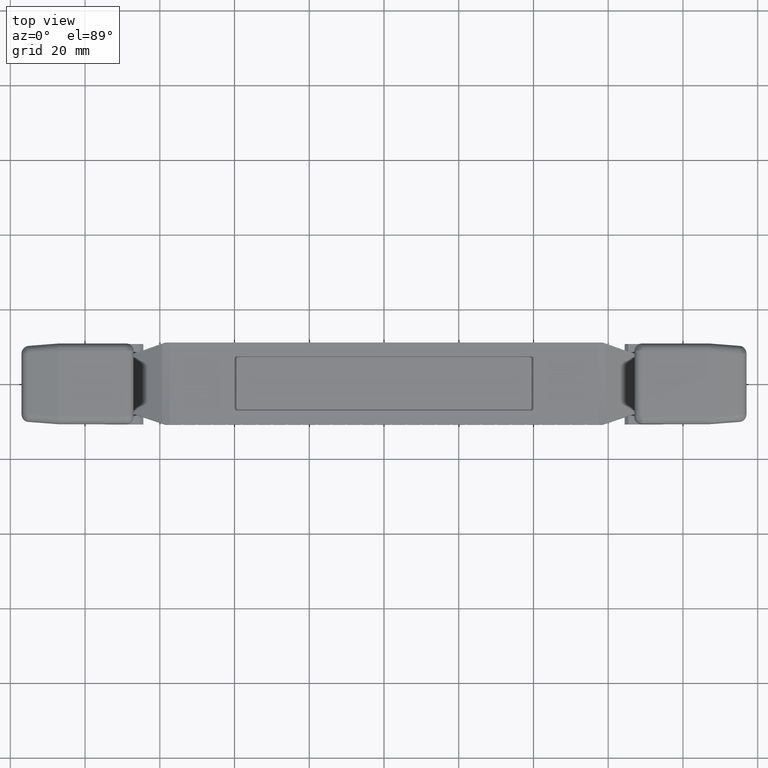
[diagram: clean part render]
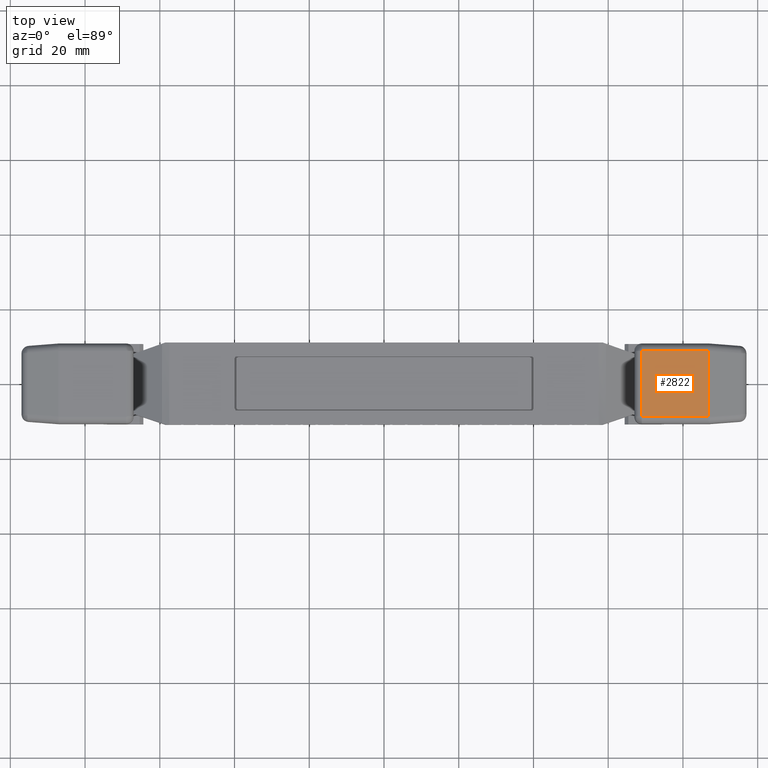
[diagram: same view with one face highlighted and labeled with its STEP entity id]
A machine part, top view. The second image highlights one B-rep face of the part: STEP entity #2822.
In plain terms, the highlighted face is a freeform B-spline surface patch.
Its self-contained STEP definition (entity closure, byte-faithful):
#305=CARTESIAN_POINT('',(69.0,-8.750000000000000,8.0));
#306=VERTEX_POINT('',#305);
#422=CARTESIAN_POINT('',(69.0,8.750000000000000,8.0));
#423=VERTEX_POINT('',#422);
#480=CARTESIAN_POINT('',(86.801891552688105,8.750000000000000,8.0));
#481=VERTEX_POINT('',#480);
#606=CARTESIAN_POINT('',(86.801891552688105,8.750000000000000,8.0));
#607=CARTESIAN_POINT('',(69.0,8.750000000000000,8.0));
#608=QUASI_UNIFORM_CURVE('',1,(#606,#607),.UNSPECIFIED.,.F.,.U.);
#609=EDGE_CURVE('',#481,#423,#608,.T.);
#861=CARTESIAN_POINT('',(86.801891552688105,-8.750000000000000,8.0));
#862=VERTEX_POINT('',#861);
#952=CARTESIAN_POINT('',(69.0,-8.750000000000000,8.0));
#953=CARTESIAN_POINT('',(86.801891552688105,-8.750000000000000,8.0));
#954=QUASI_UNIFORM_CURVE('',1,(#952,#953),.UNSPECIFIED.,.F.,.U.);
#955=EDGE_CURVE('',#306,#862,#954,.T.);
#2691=CARTESIAN_POINT('',(86.801891552688105,-8.750000000000000,8.0));
#2692=CARTESIAN_POINT('',(86.801891552688105,8.750000000000000,8.0));
#2693=QUASI_UNIFORM_CURVE('',1,(#2691,#2692),.UNSPECIFIED.,.F.,.U.);
#2694=EDGE_CURVE('',#862,#481,#2693,.T.);
#2720=CARTESIAN_POINT('',(69.0,8.750000000000000,8.0));
#2721=CARTESIAN_POINT('',(69.0,-8.750000000000000,8.0));
#2722=QUASI_UNIFORM_CURVE('',1,(#2720,#2721),.UNSPECIFIED.,.F.,.U.);
#2723=EDGE_CURVE('',#423,#306,#2722,.T.);
#2811=CARTESIAN_POINT('',(68.110795424245026,-9.624124966081608,8.0));
#2812=CARTESIAN_POINT('',(87.691099152508045,-9.624124966081608,8.0));
#2813=CARTESIAN_POINT('',(68.110795424245026,9.624125435468184,8.0));
#2814=CARTESIAN_POINT('',(87.691099152508045,9.624125435468184,8.0));
#2815=B_SPLINE_SURFACE_WITH_KNOTS('',1,1,((#2811,#2813),(#2812,#2814)),.UNSPECIFIED.,.F.,.F.,.U.,(2,2),(2,2),(0.0,19.580303728263019),(0.0,19.248250401549790),.UNSPECIFIED.);
#2816=ORIENTED_EDGE('',*,*,#2723,.T.);
#2817=ORIENTED_EDGE('',*,*,#955,.T.);
#2818=ORIENTED_EDGE('',*,*,#2694,.T.);
#2819=ORIENTED_EDGE('',*,*,#609,.T.);
#2820=EDGE_LOOP('',(#2816,#2817,#2818,#2819));
#2821=FACE_OUTER_BOUND('',#2820,.T.);
#2822=ADVANCED_FACE('',(#2821),#2815,.T.);